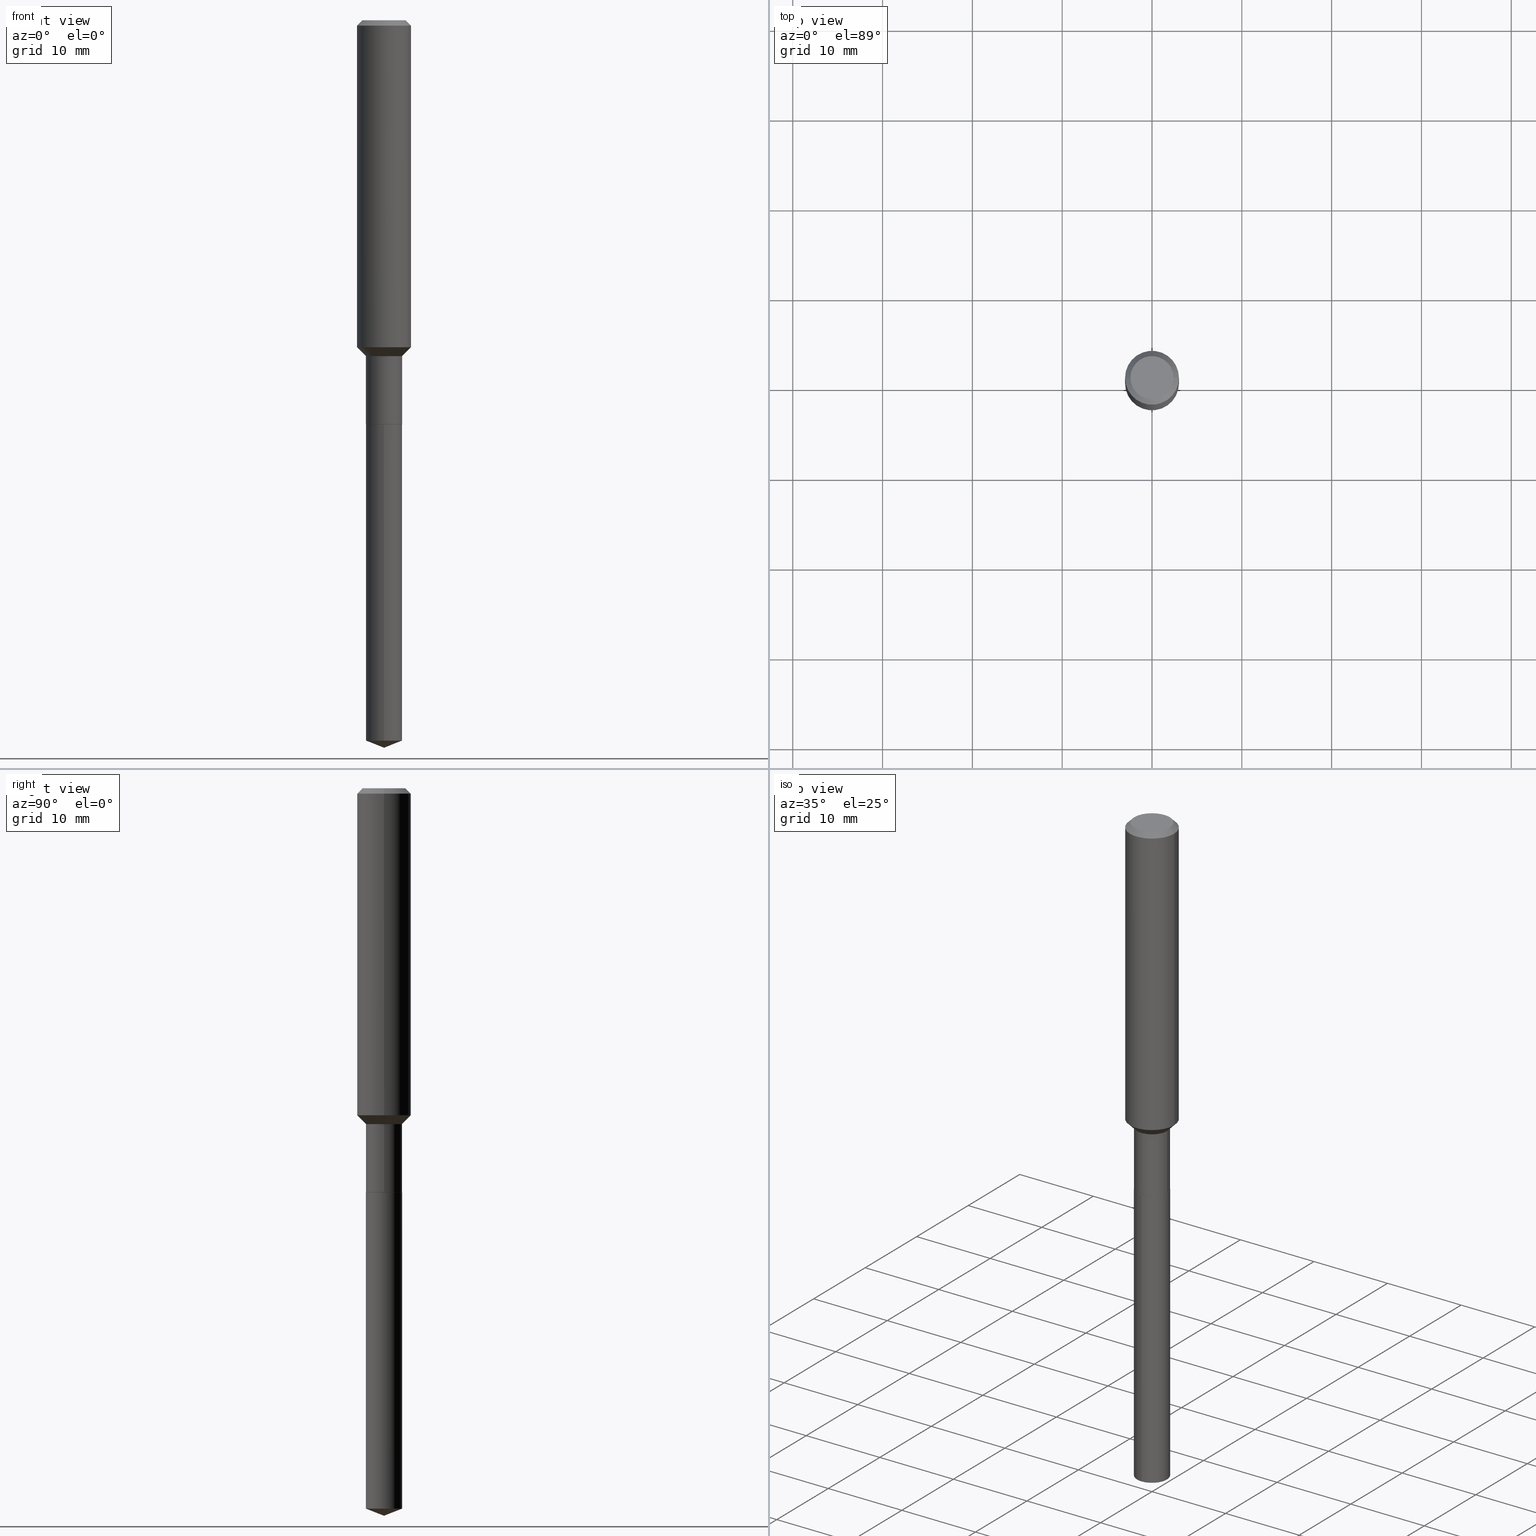
[diagram: canonical four-view strip — front | top / right | iso, engineering-drawing reading convention]
A machine part, canonical four-view strip (front | top / right | iso — engineering-drawing reading convention). The complete STEP part file that produces these views, byte-faithful:
ISO-10303-21;
HEADER;
FILE_DESCRIPTION (( 'STEP AP203' ),
    '1' );
FILE_NAME ('56476.STEP',
    '2024-04-24T18:12:11',
    ( '' ),
    ( '' ),
    'SwSTEP 2.0',
    'SolidWorks 2023',
    '' );
FILE_SCHEMA (( 'CONFIG_CONTROL_DESIGN' ));
ENDSEC;

DATA;
#1 = CARTESIAN_POINT ( 'NONE',  ( 0.07949999999999995959, -5.695304359920937279E-15, -1.472200000000000175 ) ) ;
#2 = ADVANCED_FACE ( 'NONE', ( #250 ), #63, .T. ) ;
#3 = VERTEX_POINT ( 'NONE', #438 ) ;
#4 = DIRECTION ( 'NONE',  ( -6.982962677686265922E-15, -1.000000000000000000, 3.436286784483350005E-15 ) ) ;
#5 = ADVANCED_FACE ( 'NONE', ( #482 ), #175, .F. ) ;
#6 = CC_DESIGN_PERSON_AND_ORGANIZATION_ASSIGNMENT ( #178, #139, ( #163 ) ) ;
#7 = CARTESIAN_POINT ( 'NONE',  ( 4.332637083918206987E-29, -6.185857488028401870E-15, -1.771700000000000497 ) ) ;
#8 = ORIENTED_EDGE ( 'NONE', *, *, #238, .F. ) ;
#9 = SECURITY_CLASSIFICATION_LEVEL ( 'unclassified' ) ;
#10 = DIRECTION ( 'NONE',  ( 1.000000000000000000, -6.982962677686267499E-15, 4.876176775795935793E-29 ) ) ;
#11 = ORIENTED_EDGE ( 'NONE', *, *, #386, .F. ) ;
#12 = DIRECTION ( 'NONE',  ( -2.445298499858016910E-29, 3.491725227196815227E-15, 1.000000000000000000 ) ) ;
#13 = FACE_OUTER_BOUND ( 'NONE', #380, .T. ) ;
#14 = CARTESIAN_POINT ( 'NONE',  ( 5.776197320209328408E-31, -8.246878922347560526E-17, -0.02362000000000014435 ) ) ;
#15 = APPLICATION_CONTEXT ( 'configuration controlled 3d designs of mechanical parts and assemblies' ) ;
#16 = COORDINATED_UNIVERSAL_TIME_OFFSET ( 5, 0, .BEHIND. ) ;
#17 = EDGE_LOOP ( 'NONE', ( #111, #439, #34, #314 ) ) ;
#18 = EDGE_CURVE ( 'NONE', #378, #227, #50, .T. ) ;
#19 = FACE_OUTER_BOUND ( 'NONE', #452, .T. ) ;
#20 = VERTEX_POINT ( 'NONE', #58 ) ;
#21 = ADVANCED_FACE ( 'NONE', ( #253 ), #442, .T. ) ;
#22 = MECHANICAL_CONTEXT ( 'NONE', #15, 'mechanical' ) ;
#23 = FACE_OUTER_BOUND ( 'NONE', #460, .T. ) ;
#24 = ORIENTED_EDGE ( 'NONE', *, *, #326, .T. ) ;
#25 = VECTOR ( 'NONE', #284, 39.37007874015748143 ) ;
#26 = CONICAL_SURFACE ( 'NONE', #288, 99.94676754583854006, 1.195550537616114628 ) ;
#27 = DIRECTION ( 'NONE',  ( -2.445468806185136597E-29, 3.491481338843145583E-15, 1.000000000000000000 ) ) ;
#28 = DIRECTION ( 'NONE',  ( -2.445468806185136877E-29, 3.491481338843145188E-15, 1.000000000000000000 ) ) ;
#29 = AXIS2_PLACEMENT_3D ( 'NONE', #194, #345, #156 ) ;
#30 = LINE ( 'NONE', #186, #168 ) ;
#31 = FACE_OUTER_BOUND ( 'NONE', #193, .T. ) ;
#32 = ORIENTED_EDGE ( 'NONE', *, *, #337, .F. ) ;
#33 = DATE_AND_TIME ( #376, #411 ) ;
#34 = ORIENTED_EDGE ( 'NONE', *, *, #367, .T. ) ;
#35 = ORIENTED_EDGE ( 'NONE', *, *, #182, .F. ) ;
#36 = DIRECTION ( 'NONE',  ( -6.982962677686265922E-15, -1.000000000000000000, 3.498627837350054315E-15 ) ) ;
#37 = ORIENTED_EDGE ( 'NONE', *, *, #91, .F. ) ;
#38 = CIRCLE ( 'NONE', #213, 0.07949999999999995959 ) ;
#39 = FACE_OUTER_BOUND ( 'NONE', #344, .T. ) ;
#40 = CC_DESIGN_PERSON_AND_ORGANIZATION_ASSIGNMENT ( #88, #146, ( #163 ) ) ;
#41 = DIRECTION ( 'NONE',  ( 1.000000000000000000, -6.982962677686266711E-15, 0.000000000000000000 ) ) ;
#42 = ORIENTED_EDGE ( 'NONE', *, *, #337, .T. ) ;
#43 = CYLINDRICAL_SURFACE ( 'NONE', #366, 0.07949999999999998734 ) ;
#44 = ORIENTED_EDGE ( 'NONE', *, *, #405, .T. ) ;
#45 = CARTESIAN_POINT ( 'NONE',  ( 4.332637083918206987E-29, -6.185857488028401870E-15, -1.771700000000000497 ) ) ;
#46 = DIRECTION ( 'NONE',  ( -2.445298499858016910E-29, 3.491725227196815227E-15, 1.000000000000000000 ) ) ;
#47 = AXIS2_PLACEMENT_3D ( 'NONE', #277, #46, #317 ) ;
#48 = CARTESIAN_POINT ( 'NONE',  ( -5.551455328760147649E-16, -0.07950000000000617684, -1.771700000000000053 ) ) ;
#49 = PERSON_AND_ORGANIZATION ( #246, #60 ) ;
#50 = LINE ( 'NONE', #137, #105 ) ;
#51 = LINE ( 'NONE', #348, #417 ) ;
#52 = CIRCLE ( 'NONE', #468, 0.07950000000000000122 ) ;
#53 = DIRECTION ( 'NONE',  ( 0.000000000000000000, 0.000000000000000000, 1.000000000000000000 ) ) ;
#54 = CARTESIAN_POINT ( 'NONE',  ( 4.332637083918206987E-29, -6.185857488028401870E-15, -1.771700000000000497 ) ) ;
#55 = ADVANCED_FACE ( 'NONE', ( #23 ), #211, .T. ) ;
#56 = EDGE_CURVE ( 'NONE', #310, #119, #76, .T. ) ;
#57 = APPROVAL_STATUS ( 'not_yet_approved' ) ;
#58 = CARTESIAN_POINT ( 'NONE',  ( -0.07950000000000000122, -5.097253812272650534E-15, -1.771200000000000552 ) ) ;
#59 = APPROVAL ( #275, 'UNSPECIFIED' ) ;
#60 = ORGANIZATION ( 'UNSPECIFIED', 'UNSPECIFIED', '' ) ;
#61 = COORDINATED_UNIVERSAL_TIME_OFFSET ( 5, 0, .BEHIND. ) ;
#62 = CARTESIAN_POINT ( 'NONE',  ( 4.332637083918206987E-29, -6.185857488028401870E-15, -1.771700000000000497 ) ) ;
#63 = CONICAL_SURFACE ( 'NONE', #125, 0.07900000000000000078, 0.7853981633975507526 ) ;
#64 = CARTESIAN_POINT ( 'NONE',  ( 0.000000000000000000, 0.000000000000000000, 0.000000000000000000 ) ) ;
#65 = DIRECTION ( 'NONE',  ( -0.7071067811865496822, 7.493145998870362049E-15, 0.7071067811865453523 ) ) ;
#66 = CIRCLE ( 'NONE', #29, 0.1181000000000001632 ) ;
#67 = ADVANCED_FACE ( 'NONE', ( #290 ), #435, .F. ) ;
#68 = DIRECTION ( 'NONE',  ( -2.445468806185136597E-29, 3.491481338843145583E-15, 1.000000000000000000 ) ) ;
#69 = EDGE_CURVE ( 'NONE', #378, #20, #52, .T. ) ;
#70 = CARTESIAN_POINT ( 'NONE',  ( 0.1181000000000000799, -8.246878922347486570E-16, 5.758764772215004644E-30 ) ) ;
#71 = APPROVAL_PERSON_ORGANIZATION ( #49, #145, #257 ) ;
#72 = CARTESIAN_POINT ( 'NONE',  ( 5.776197320209328408E-31, -8.246878922347560526E-17, -0.02362000000000014435 ) ) ;
#73 = ORIENTED_EDGE ( 'NONE', *, *, #370, .F. ) ;
#74 = APPROVAL_ROLE ( '' ) ;
#75 = LINE ( 'NONE', #311, #343 ) ;
#76 = CIRCLE ( 'NONE', #333, 0.1181000000000001632 ) ;
#77 = ORIENTED_EDGE ( 'NONE', *, *, #355, .F. ) ;
#78 = ORIENTED_EDGE ( 'NONE', *, *, #291, .T. ) ;
#79 = CARTESIAN_POINT ( 'NONE',  ( 0.000000000000000000, 0.000000000000000000, 0.000000000000000000 ) ) ;
#80 = DIRECTION ( 'NONE',  ( 1.000000000000000000, -6.982962677686266711E-15, 0.000000000000000000 ) ) ;
#81 = ORIENTED_EDGE ( 'NONE', *, *, #112, .T. ) ;
#82 = CARTESIAN_POINT ( 'NONE',  ( 3.600219176465758474E-29, -5.140158827044879423E-15, -1.472200000000000175 ) ) ;
#83 = ORIENTED_EDGE ( 'NONE', *, *, #56, .T. ) ;
#84 = DIRECTION ( 'NONE',  ( 0.7071067811865496822, -2.468850131082279149E-15, 0.7071067811865453523 ) ) ;
#85 = CARTESIAN_POINT ( 'NONE',  ( 5.648814749293228466E-16, 0.07949999999999381173, -1.771700000000000719 ) ) ;
#86 = CARTESIAN_POINT ( 'NONE',  ( -0.1180999999999999966, 7.422191030112725094E-16, -0.02362000000000014435 ) ) ;
#87 = VECTOR ( 'NONE', #347, 39.37007874015748143 ) ;
#88 = PERSON_AND_ORGANIZATION ( #246, #60 ) ;
#89 = ORIENTED_EDGE ( 'NONE', *, *, #256, .F. ) ;
#90 = CARTESIAN_POINT ( 'NONE',  ( 0.1180999999999999966, -8.926936027602933910E-16, -0.02362000000000014435 ) ) ;
#91 = EDGE_CURVE ( 'NONE', #270, #187, #299, .T. ) ;
#92 = CC_DESIGN_PERSON_AND_ORGANIZATION_ASSIGNMENT ( #220, #176, ( #131 ) ) ;
#93 = CARTESIAN_POINT ( 'NONE',  ( 5.776197320209328408E-31, -8.246878922347560526E-17, -0.02362000000000014435 ) ) ;
#94 = DIRECTION ( 'NONE',  ( -2.445298499858016910E-29, 3.491725227196815227E-15, 1.000000000000000000 ) ) ;
#95 = APPROVAL_STATUS ( 'not_yet_approved' ) ;
#96 = EDGE_LOOP ( 'NONE', ( #83, #450, #226, #346 ) ) ;
#97 = APPROVAL_PERSON_ORGANIZATION ( #358, #183, #174 ) ;
#98 = DIRECTION ( 'NONE',  ( 1.000000000000000000, 0.000000000000000000, 0.000000000000000000 ) ) ;
#99 = DIRECTION ( 'NONE',  ( -2.445468806185136597E-29, 3.491481338843145583E-15, 1.000000000000000000 ) ) ;
#100 = CIRCLE ( 'NONE', #353, 0.07950000000000000122 ) ;
#101 = AXIS2_PLACEMENT_3D ( 'NONE', #381, #316, #243 ) ;
#102 = EDGE_CURVE ( 'NONE', #414, #227, #455, .T. ) ;
#103 = CARTESIAN_POINT ( 'NONE',  ( 3.600219176465758474E-29, -5.140158827044879423E-15, -1.472200000000000175 ) ) ;
#104 = ADVANCED_FACE ( 'NONE', ( #397 ), #292, .T. ) ;
#105 = VECTOR ( 'NONE', #364, 39.37007874015748143 ) ;
#106 = AXIS2_PLACEMENT_3D ( 'NONE', #224, #374, #144 ) ;
#107 = CARTESIAN_POINT ( 'NONE',  ( -0.07949999999999995959, -4.575277352115599668E-15, -1.472200000000000175 ) ) ;
#108 = AXIS2_PLACEMENT_3D ( 'NONE', #124, #466, #308 ) ;
#109 = ORIENTED_EDGE ( 'NONE', *, *, #256, .T. ) ;
#110 = ORIENTED_EDGE ( 'NONE', *, *, #293, .F. ) ;
#111 = ORIENTED_EDGE ( 'NONE', *, *, #291, .F. ) ;
#112 = EDGE_CURVE ( 'NONE', #3, #375, #147, .T. ) ;
#113 = DIRECTION ( 'NONE',  ( 1.000000000000000000, -6.982962677686269866E-15, 0.000000000000000000 ) ) ;
#114 = EDGE_CURVE ( 'NONE', #119, #150, #30, .T. ) ;
#115 = AXIS2_PLACEMENT_3D ( 'NONE', #14, #361, #399 ) ;
#116 = VERTEX_POINT ( 'NONE', #318 ) ;
#117 = CARTESIAN_POINT ( 'NONE',  ( 4.332637083918206987E-29, -6.185857488028401870E-15, -1.771700000000000497 ) ) ;
#118 = FACE_OUTER_BOUND ( 'NONE', #447, .T. ) ;
#119 = VERTEX_POINT ( 'NONE', #244 ) ;
#120 = CC_DESIGN_APPROVAL ( #183, ( #131 ) ) ;
#121 = DIRECTION ( 'NONE',  ( -2.445298499858016910E-29, 3.491725227196815227E-15, 1.000000000000000000 ) ) ;
#122 = EDGE_CURVE ( 'NONE', #20, #378, #100, .T. ) ;
#123 = EDGE_LOOP ( 'NONE', ( #429, #268, #162, #35 ) ) ;
#124 = CARTESIAN_POINT ( 'NONE',  ( 6.603013411620882309E-46, -9.427353171913646324E-32, -2.700101262760083747E-17 ) ) ;
#125 = AXIS2_PLACEMENT_3D ( 'NONE', #62, #130, #321 ) ;
#126 = FACE_OUTER_BOUND ( 'NONE', #231, .T. ) ;
#127 = CARTESIAN_POINT ( 'NONE',  ( 0.07900000000000000078, -6.737511539565617508E-15, -1.771700000000000497 ) ) ;
#128 = CONICAL_SURFACE ( 'NONE', #185, 0.07949999999999995959, 0.7853981633974513876 ) ;
#129 = CARTESIAN_POINT ( 'NONE',  ( 0.000000000000000000, 0.000000000000000000, 0.000000000000000000 ) ) ;
#130 = DIRECTION ( 'NONE',  ( -2.445468806185136597E-29, 3.491481338843145583E-15, 1.000000000000000000 ) ) ;
#131 = PRODUCT_DEFINITION ( 'UNKNOWN', '', #163, #287 ) ;
#132 = CARTESIAN_POINT ( 'NONE',  ( -0.07949999999999998734, 5.648814749292795578E-16, -3.910553396752649427E-30 ) ) ;
#133 = DIRECTION ( 'NONE',  ( 1.000000000000000000, -6.982962677686265922E-15, 0.000000000000000000 ) ) ;
#134 = DATE_TIME_ROLE ( 'creation_date' ) ;
#135 = ORIENTED_EDGE ( 'NONE', *, *, #326, .F. ) ;
#136 = DIRECTION ( 'NONE',  ( 2.445468806185136597E-29, -3.491481338843145583E-15, -1.000000000000000000 ) ) ;
#137 = CARTESIAN_POINT ( 'NONE',  ( 0.07949999999999998734, -5.551455328760581522E-16, 3.876560536757768171E-30 ) ) ;
#138 = CIRCLE ( 'NONE', #108, 0.09447999999999998066 ) ;
#139 = PERSON_AND_ORGANIZATION_ROLE ( 'creator' ) ;
#140 = CIRCLE ( 'NONE', #339, 0.07950000000000000122 ) ;
#141 = ADVANCED_FACE ( 'NONE', ( #428 ), #467, .T. ) ;
#142 = CIRCLE ( 'NONE', #373, 0.07900000000000000078 ) ;
#143 = EDGE_CURVE ( 'NONE', #375, #3, #140, .T. ) ;
#144 = DIRECTION ( 'NONE',  ( -1.000000000000000000, 6.982962677686265922E-15, -4.876176775795935793E-29 ) ) ;
#145 = APPROVAL ( #95, 'UNSPECIFIED' ) ;
#146 = PERSON_AND_ORGANIZATION_ROLE ( 'design_supplier' ) ;
#147 = CIRCLE ( 'NONE', #190, 0.07950000000000000122 ) ;
#148 = DIRECTION ( 'NONE',  ( 1.000000000000000000, -6.982962677686269866E-15, 0.000000000000000000 ) ) ;
#149 = EDGE_LOOP ( 'NONE', ( #454, #202, #11, #424 ) ) ;
#150 = VERTEX_POINT ( 'NONE', #436 ) ;
#151 = CC_DESIGN_APPROVAL ( #145, ( #163 ) ) ;
#152 = ORIENTED_EDGE ( 'NONE', *, *, #198, .F. ) ;
#153 = CARTESIAN_POINT ( 'NONE',  ( 0.000000000000000000, 0.000000000000000000, 0.000000000000000000 ) ) ;
#154 = ORIENTED_EDGE ( 'NONE', *, *, #234, .T. ) ;
#155 = DATE_AND_TIME ( #228, #236 ) ;
#156 = DIRECTION ( 'NONE',  ( 1.000000000000000000, -6.982962677686270655E-15, 0.000000000000000000 ) ) ;
#157 = CARTESIAN_POINT ( 'NONE',  ( 0.1180999999999999966, -9.071566814582237199E-16, -0.02362000000000014435 ) ) ;
#158 = ORIENTED_EDGE ( 'NONE', *, *, #456, .T. ) ;
#159 = EDGE_CURVE ( 'NONE', #116, #20, #51, .T. ) ;
#160 = DIRECTION ( 'NONE',  ( -2.445468806185136597E-29, 3.491481338843145583E-15, 1.000000000000000000 ) ) ;
#161 = EDGE_CURVE ( 'NONE', #187, #150, #219, .T. ) ;
#162 = ORIENTED_EDGE ( 'NONE', *, *, #69, .F. ) ;
#163 = PRODUCT_DEFINITION_FORMATION_WITH_SPECIFIED_SOURCE ( 'ANY', '', #426, .NOT_KNOWN. ) ;
#164 = CARTESIAN_POINT ( 'NONE',  ( -0.07949999999999995959, -5.097253812272650534E-15, -1.472200000000000175 ) ) ;
#165 = DIRECTION ( 'NONE',  ( -2.445298499858016910E-29, 3.491725227196815227E-15, 1.000000000000000000 ) ) ;
#166 = CYLINDRICAL_SURFACE ( 'NONE', #423, 0.1181000000000000799 ) ;
#167 = DIRECTION ( 'NONE',  ( 1.000000000000000000, -6.982962677686271444E-15, 0.000000000000000000 ) ) ;
#168 = VECTOR ( 'NONE', #474, 39.37007874015748143 ) ;
#169 =( NAMED_UNIT ( * ) SI_UNIT ( $, .STERADIAN. ) SOLID_ANGLE_UNIT ( ) );
#170 = CARTESIAN_POINT ( 'NONE',  ( 4.332637083918206987E-29, -6.185857488028401870E-15, -1.771700000000000497 ) ) ;
#171 = LOCAL_TIME ( 14, 12, 11.00000000000000000, #61 ) ;
#172 = CALENDAR_DATE ( 2024, 24, 4 ) ;
#173 = DIRECTION ( 'NONE',  ( 1.000000000000000000, -6.982962677686271444E-15, 0.000000000000000000 ) ) ;
#174 = APPROVAL_ROLE ( '' ) ;
#175 = PLANE ( 'NONE',  #189 ) ;
#176 = PERSON_AND_ORGANIZATION_ROLE ( 'creator' ) ;
#177 = CARTESIAN_POINT ( 'NONE',  ( 3.505824080547012473E-29, -5.005387647365534614E-15, -1.433600000000000207 ) ) ;
#178 = PERSON_AND_ORGANIZATION ( #246, #60 ) ;
#179 = AXIS2_PLACEMENT_3D ( 'NONE', #103, #68, #148 ) ;
#180 = DIRECTION ( 'NONE',  ( 6.982962677686265922E-15, 1.000000000000000000, -3.491725227196814833E-15 ) ) ;
#181 = VECTOR ( 'NONE', #332, 39.37007874015748143 ) ;
#182 = EDGE_CURVE ( 'NONE', #225, #378, #197, .T. ) ;
#183 = APPROVAL ( #57, 'UNSPECIFIED' ) ;
#184 = DIMENSIONAL_EXPONENTS ( 1.000000000000000000, 0.000000000000000000, 0.000000000000000000, 0.000000000000000000, 0.000000000000000000, 0.000000000000000000, 0.000000000000000000 ) ;
#185 = AXIS2_PLACEMENT_3D ( 'NONE', #82, #431, #113 ) ;
#186 = CARTESIAN_POINT ( 'NONE',  ( -0.1181000000000000799, 8.391509709326788873E-16, -5.809262341591047988E-30 ) ) ;
#187 = VERTEX_POINT ( 'NONE', #157 ) ;
#188 = APPROVAL_DATE_TIME ( #33, #59 ) ;
#189 = AXIS2_PLACEMENT_3D ( 'NONE', #54, #393, #218 ) ;
#190 = AXIS2_PLACEMENT_3D ( 'NONE', #432, #94, #359 ) ;
#191 = ORIENTED_EDGE ( 'NONE', *, *, #367, .F. ) ;
#192 = FACE_OUTER_BOUND ( 'NONE', #446, .T. ) ;
#193 = EDGE_LOOP ( 'NONE', ( #349, #78, #357, #191 ) ) ;
#194 = CARTESIAN_POINT ( 'NONE',  ( 3.505824080547012473E-29, -5.005387647365534614E-15, -1.433600000000000207 ) ) ;
#195 = ORIENTED_EDGE ( 'NONE', *, *, #405, .F. ) ;
#196 = DIRECTION ( 'NONE',  ( -2.445298499858016910E-29, 3.491725227196815227E-15, 1.000000000000000000 ) ) ;
#197 = LINE ( 'NONE', #127, #484 ) ;
#198 = EDGE_CURVE ( 'NONE', #225, #116, #262, .T. ) ;
#199 = ORIENTED_EDGE ( 'NONE', *, *, #459, .T. ) ;
#200 = DIRECTION ( 'NONE',  ( -0.7071067811865459074, 2.468850131082240100E-15, -0.7071067811865491270 ) ) ;
#201 = ADVANCED_FACE ( 'NONE', ( #118 ), #229, .T. ) ;
#202 = ORIENTED_EDGE ( 'NONE', *, *, #480, .T. ) ;
#203 = DIRECTION ( 'NONE',  ( -2.445468806185136597E-29, 3.491481338843145583E-15, 1.000000000000000000 ) ) ;
#204 = DIRECTION ( 'NONE',  ( -6.982962677686265922E-15, -1.000000000000000000, 6.872573568966700010E-15 ) ) ;
#205 = APPROVAL_PERSON_ORGANIZATION ( #372, #59, #74 ) ;
#206 = FACE_OUTER_BOUND ( 'NONE', #17, .T. ) ;
#207 = DIRECTION ( 'NONE',  ( -6.982962677686265922E-15, -1.000000000000000000, 3.436286784483350005E-15 ) ) ;
#208 = DATE_AND_TIME ( #478, #400 ) ;
#209 = DIRECTION ( 'NONE',  ( 2.445298499858016910E-29, -3.491725227196814833E-15, -1.000000000000000000 ) ) ;
#210 = CARTESIAN_POINT ( 'NONE',  ( 7.721781966506557939E-29, -1.102533319450998627E-14, -3.157684117188612305 ) ) ;
#211 = CONICAL_SURFACE ( 'NONE', #487, 0.07900000000000000078, 0.7853981633975507526 ) ;
#212 = ORIENTED_EDGE ( 'NONE', *, *, #143, .T. ) ;
#213 = AXIS2_PLACEMENT_3D ( 'NONE', #230, #203, #350 ) ;
#214 = COORDINATED_UNIVERSAL_TIME_OFFSET ( 5, 0, .BEHIND. ) ;
#215 = ORIENTED_EDGE ( 'NONE', *, *, #335, .F. ) ;
#216 = EDGE_CURVE ( 'NONE', #375, #248, #312, .T. ) ;
#217 = CALENDAR_DATE ( 2024, 24, 4 ) ;
#218 = DIRECTION ( 'NONE',  ( 1.000000000000000000, -6.982962677686265922E-15, 4.876176775795935793E-29 ) ) ;
#219 = CIRCLE ( 'NONE', #430, 0.1180999999999999966 ) ;
#220 = PERSON_AND_ORGANIZATION ( #246, #60 ) ;
#221 = ORIENTED_EDGE ( 'NONE', *, *, #114, .F. ) ;
#222 = VECTOR ( 'NONE', #84, 39.37007874015748143 ) ;
#223 = CONICAL_SURFACE ( 'NONE', #179, 0.07949999999999995959, 0.7853981633974513876 ) ;
#224 = CARTESIAN_POINT ( 'NONE',  ( 3.301506705810441154E-46, -4.713676585956823162E-32, -1.350050631380041873E-17 ) ) ;
#225 = VERTEX_POINT ( 'NONE', #470 ) ;
#226 = ORIENTED_EDGE ( 'NONE', *, *, #161, .F. ) ;
#227 = VERTEX_POINT ( 'NONE', #419 ) ;
#228 = CALENDAR_DATE ( 2024, 24, 4 ) ;
#229 = CONICAL_SURFACE ( 'NONE', #47, 99.94676754583854006, 1.195550537616114628 ) ;
#230 = CARTESIAN_POINT ( 'NONE',  ( 3.600219176465758474E-29, -5.140158827044879423E-15, -1.472200000000000175 ) ) ;
#231 = EDGE_LOOP ( 'NONE', ( #110, #199, #479 ) ) ;
#232 = PERSON_AND_ORGANIZATION_ROLE ( 'classification_officer' ) ;
#233 = CARTESIAN_POINT ( 'NONE',  ( 7.798056916047217309E-29, -1.113511174953064520E-14, -3.189000000000000501 ) ) ;
#234 = EDGE_CURVE ( 'NONE', #310, #187, #368, .T. ) ;
#235 = CARTESIAN_POINT ( 'NONE',  ( 5.776197320209328408E-31, -8.246878922347560526E-17, -0.02362000000000014435 ) ) ;
#236 = LOCAL_TIME ( 14, 12, 11.00000000000000000, #266 ) ;
#237 = ORIENTED_EDGE ( 'NONE', *, *, #480, .F. ) ;
#238 = EDGE_CURVE ( 'NONE', #150, #187, #443, .T. ) ;
#239 = FACE_OUTER_BOUND ( 'NONE', #279, .T. ) ;
#240 = ORIENTED_EDGE ( 'NONE', *, *, #459, .F. ) ;
#241 = DIRECTION ( 'NONE',  ( -2.445298499858016910E-29, 3.491725227196815227E-15, 1.000000000000000000 ) ) ;
#242 = DIRECTION ( 'NONE',  ( 0.7071067811866199593, -2.468850131083015945E-15, 0.7071067811864750752 ) ) ;
#243 = DIRECTION ( 'NONE',  ( 1.000000000000000000, -6.982962677686267499E-15, 4.876176775795935793E-29 ) ) ;
#244 = CARTESIAN_POINT ( 'NONE',  ( -0.1181000000000001632, -4.166236676432854051E-15, -1.433600000000000207 ) ) ;
#245 = ORIENTED_EDGE ( 'NONE', *, *, #182, .T. ) ;
#246 = PERSON ( 'UNSPECIFIED', 'UNSPECIFIED', 'UNSPECIFIED', ('UNSPECIFIED'), ('UNSPECIFIED'), ('UNSPECIFIED') ) ;
#247 = DIRECTION ( 'NONE',  ( -2.445468806185136877E-29, 3.491481338843145188E-15, 1.000000000000000000 ) ) ;
#248 = VERTEX_POINT ( 'NONE', #445 ) ;
#249 = LENGTH_MEASURE_WITH_UNIT ( LENGTH_MEASURE( 0.02539999999999999897 ), #395 );
#250 = FACE_OUTER_BOUND ( 'NONE', #123, .T. ) ;
#251 = AXIS2_PLACEMENT_3D ( 'NONE', #441, #99, #261 ) ;
#252 = DIRECTION ( 'NONE',  ( 6.611014441532053178E-15, 0.9304175679820252398, 0.3665012267242950261 ) ) ;
#253 = FACE_OUTER_BOUND ( 'NONE', #329, .T. ) ;
#254 = ADVANCED_FACE ( 'NONE', ( #192 ), #334, .F. ) ;
#255 = CIRCLE ( 'NONE', #263, 0.07950000000000000122 ) ;
#256 = EDGE_CURVE ( 'NONE', #270, #354, #278, .T. ) ;
#257 = APPROVAL_ROLE ( '' ) ;
#258 = ORIENTED_EDGE ( 'NONE', *, *, #102, .F. ) ;
#259 = CC_DESIGN_PERSON_AND_ORGANIZATION_ASSIGNMENT ( #440, #356, ( #426 ) ) ;
#260 = LINE ( 'NONE', #328, #297 ) ;
#261 = DIRECTION ( 'NONE',  ( 1.000000000000000000, -6.982962677686269866E-15, 0.000000000000000000 ) ) ;
#262 = CIRCLE ( 'NONE', #320, 0.07900000000000000078 ) ;
#263 = AXIS2_PLACEMENT_3D ( 'NONE', #421, #241, #4 ) ;
#264 = MANIFOLD_SOLID_BREP ( 'Body-Move/Copy2[1]', #477 ) ;
#265 = SHAPE_DEFINITION_REPRESENTATION ( #465, #352 ) ;
#266 = COORDINATED_UNIVERSAL_TIME_OFFSET ( 5, 0, .BEHIND. ) ;
#267 = VECTOR ( 'NONE', #200, 39.37007874015748143 ) ;
#268 = ORIENTED_EDGE ( 'NONE', *, *, #159, .T. ) ;
#269 = COORDINATED_UNIVERSAL_TIME_OFFSET ( 5, 0, .BEHIND. ) ;
#270 = VERTEX_POINT ( 'NONE', #451 ) ;
#271 = EDGE_LOOP ( 'NONE', ( #152, #32 ) ) ;
#272 = DIRECTION ( 'NONE',  ( 1.000000000000000000, -6.982962677686271444E-15, 0.000000000000000000 ) ) ;
#273 = ADVANCED_FACE ( 'NONE', ( #31 ), #223, .T. ) ;
#274 = ORIENTED_EDGE ( 'NONE', *, *, #293, .T. ) ;
#275 = APPROVAL_STATUS ( 'not_yet_approved' ) ;
#276 = LINE ( 'NONE', #48, #87 ) ;
#277 = CARTESIAN_POINT ( 'NONE',  ( -8.847323583483212594E-28, 1.263348174811984250E-13, 36.18107874015748138 ) ) ;
#278 = CIRCLE ( 'NONE', #448, 0.09447999999999998066 ) ;
#279 = EDGE_LOOP ( 'NONE', ( #387, #212, #44, #73 ) ) ;
#280 = DIRECTION ( 'NONE',  ( -6.497071151882108003E-15, -0.9304175679820229083, 0.3665012267243016875 ) ) ;
#281 = ORIENTED_EDGE ( 'NONE', *, *, #355, .T. ) ;
#282 = LINE ( 'NONE', #86, #267 ) ;
#283 = AXIS2_PLACEMENT_3D ( 'NONE', #7, #392, #207 ) ;
#284 = DIRECTION ( 'NONE',  ( -2.445298499858016629E-29, 3.491725227196814833E-15, 1.000000000000000000 ) ) ;
#285 = CARTESIAN_POINT ( 'NONE',  ( -8.847323583483212594E-28, 1.263348174811984250E-13, 36.18107874015748138 ) ) ;
#286 = DIRECTION ( 'NONE',  ( 1.000000000000000000, -6.982962677686266711E-15, 4.876176775795936353E-29 ) ) ;
#287 = DESIGN_CONTEXT ( 'detailed design', #315, 'design' ) ;
#288 = AXIS2_PLACEMENT_3D ( 'NONE', #285, #196, #36 ) ;
#289 = CARTESIAN_POINT ( 'NONE',  ( -5.551455328760147649E-16, -0.07950000000000617684, -1.771700000000000053 ) ) ;
#290 = FACE_OUTER_BOUND ( 'NONE', #488, .T. ) ;
#291 = EDGE_CURVE ( 'NONE', #414, #119, #302, .T. ) ;
#292 = CYLINDRICAL_SURFACE ( 'NONE', #362, 0.1181000000000000799 ) ;
#293 = EDGE_CURVE ( 'NONE', #303, #3, #75, .T. ) ;
#294 = CC_DESIGN_DATE_AND_TIME_ASSIGNMENT ( #155, #489, ( #444 ) ) ;
#295 = LINE ( 'NONE', #132, #313 ) ;
#296 = DIRECTION ( 'NONE',  ( -2.445468806185136597E-29, 3.491481338843145583E-15, 1.000000000000000000 ) ) ;
#297 = VECTOR ( 'NONE', #252, 39.37007874015748854 ) ;
#298 = APPROVAL_DATE_TIME ( #481, #145 ) ;
#299 = LINE ( 'NONE', #90, #181 ) ;
#300 = AXIS2_PLACEMENT_3D ( 'NONE', #129, #53, #98 ) ;
#301 = ADVANCED_FACE ( 'NONE', ( #239 ), #453, .T. ) ;
#302 = LINE ( 'NONE', #107, #323 ) ;
#303 = VERTEX_POINT ( 'NONE', #233 ) ;
#304 = ORIENTED_EDGE ( 'NONE', *, *, #122, .T. ) ;
#305 = DIRECTION ( 'NONE',  ( -6.982962677686265922E-15, -1.000000000000000000, 3.436286784483350005E-15 ) ) ;
#306 = ORIENTED_EDGE ( 'NONE', *, *, #335, .T. ) ;
#307 = CLOSED_SHELL ( 'NONE', ( #2, #21, #104, #273, #422, #406, #322, #425, #476, #254, #5, #55 ) ) ;
#308 = DIRECTION ( 'NONE',  ( 1.000000000000000000, -6.982962677686267499E-15, 4.875432709231658792E-29 ) ) ;
#309 = CARTESIAN_POINT ( 'NONE',  ( 4.332637083918206987E-29, -6.185857488028401870E-15, -1.771700000000000497 ) ) ;
#310 = VERTEX_POINT ( 'NONE', #461 ) ;
#311 = CARTESIAN_POINT ( 'NONE',  ( 7.798056916047217309E-29, -1.113511174953064363E-14, -3.189000000000000501 ) ) ;
#312 = LINE ( 'NONE', #85, #25 ) ;
#313 = VECTOR ( 'NONE', #247, 39.37007874015748143 ) ;
#314 = ORIENTED_EDGE ( 'NONE', *, *, #456, .F. ) ;
#315 = APPLICATION_CONTEXT ( 'configuration controlled 3d designs of mechanical parts and assemblies' ) ;
#316 = DIRECTION ( 'NONE',  ( -2.445468806185136597E-29, 3.491481338843145583E-15, 1.000000000000000000 ) ) ;
#317 = DIRECTION ( 'NONE',  ( -6.982962677686265922E-15, -1.000000000000000000, 3.498627837350054315E-15 ) ) ;
#318 = CARTESIAN_POINT ( 'NONE',  ( -0.07900000000000000078, -5.621879499603811813E-15, -1.771700000000000497 ) ) ;
#319 = FACE_OUTER_BOUND ( 'NONE', #149, .T. ) ;
#320 = AXIS2_PLACEMENT_3D ( 'NONE', #309, #458, #167 ) ;
#321 = DIRECTION ( 'NONE',  ( 1.000000000000000000, -6.982962677686271444E-15, 0.000000000000000000 ) ) ;
#322 = ADVANCED_FACE ( 'NONE', ( #206 ), #128, .T. ) ;
#323 = VECTOR ( 'NONE', #65, 39.37007874015748143 ) ;
#324 = APPROVAL_DATE_TIME ( #402, #183 ) ;
#325 = CARTESIAN_POINT ( 'NONE',  ( 4.331414349515115307E-29, -6.184111747358981944E-15, -1.771200000000000552 ) ) ;
#326 = EDGE_CURVE ( 'NONE', #354, #150, #282, .T. ) ;
#327 = PRODUCT_RELATED_PRODUCT_CATEGORY ( 'detail', '', ( #426 ) ) ;
#328 = CARTESIAN_POINT ( 'NONE',  ( 7.798665671148766314E-29, -1.113424755553825269E-14, -3.189000000000000501 ) ) ;
#329 = EDGE_LOOP ( 'NONE', ( #89, #415, #341, #135 ) ) ;
#330 = DIRECTION ( 'NONE',  ( -2.445468806185136597E-29, 3.491481338843145583E-15, 1.000000000000000000 ) ) ;
#331 =( GEOMETRIC_REPRESENTATION_CONTEXT ( 3 ) GLOBAL_UNCERTAINTY_ASSIGNED_CONTEXT ( ( #471 ) ) GLOBAL_UNIT_ASSIGNED_CONTEXT ( ( #360, #363, #169 ) ) REPRESENTATION_CONTEXT ( 'NONE', 'WORKASPACE' ) );
#332 = DIRECTION ( 'NONE',  ( 0.7071067811865459074, -7.319954787623249734E-15, -0.7071067811865491270 ) ) ;
#333 = AXIS2_PLACEMENT_3D ( 'NONE', #177, #403, #472 ) ;
#334 = PLANE ( 'NONE',  #106 ) ;
#335 = EDGE_CURVE ( 'NONE', #354, #270, #138, .T. ) ;
#336 = LOCAL_TIME ( 14, 12, 11.00000000000000000, #16 ) ;
#337 = EDGE_CURVE ( 'NONE', #116, #225, #142, .T. ) ;
#338 = ORIENTED_EDGE ( 'NONE', *, *, #370, .T. ) ;
#339 = AXIS2_PLACEMENT_3D ( 'NONE', #210, #165, #204 ) ;
#340 = DIRECTION ( 'NONE',  ( -2.445468806185136597E-29, 3.491481338843145583E-15, 1.000000000000000000 ) ) ;
#341 = ORIENTED_EDGE ( 'NONE', *, *, #161, .T. ) ;
#342 = DIRECTION ( 'NONE',  ( 1.000000000000000000, -6.982962677686266711E-15, 4.876176775795936353E-29 ) ) ;
#343 = VECTOR ( 'NONE', #280, 39.37007874015747433 ) ;
#344 = EDGE_LOOP ( 'NONE', ( #221, #158, #154, #8 ) ) ;
#345 = DIRECTION ( 'NONE',  ( -2.445468806185136597E-29, 3.491481338843145583E-15, 1.000000000000000000 ) ) ;
#346 = ORIENTED_EDGE ( 'NONE', *, *, #234, .F. ) ;
#347 = DIRECTION ( 'NONE',  ( -2.445298499858016629E-29, 3.491725227196814833E-15, 1.000000000000000000 ) ) ;
#348 = CARTESIAN_POINT ( 'NONE',  ( -0.07900000000000000078, -5.624528726777922225E-15, -1.771700000000000497 ) ) ;
#349 = ORIENTED_EDGE ( 'NONE', *, *, #386, .T. ) ;
#350 = DIRECTION ( 'NONE',  ( 1.000000000000000000, -6.982962677686269866E-15, 0.000000000000000000 ) ) ;
#351 = DIRECTION ( 'NONE',  ( -2.445468806185136597E-29, 3.491481338843145583E-15, 1.000000000000000000 ) ) ;
#352 = ADVANCED_BREP_SHAPE_REPRESENTATION ( '56476', ( #264, #409, #300 ), #331 ) ;
#353 = AXIS2_PLACEMENT_3D ( 'NONE', #389, #394, #385 ) ;
#354 = VERTEX_POINT ( 'NONE', #418 ) ;
#355 = EDGE_CURVE ( 'NONE', #464, #248, #412, .T. ) ;
#356 = PERSON_AND_ORGANIZATION_ROLE ( 'design_owner' ) ;
#357 = ORIENTED_EDGE ( 'NONE', *, *, #56, .F. ) ;
#358 = PERSON_AND_ORGANIZATION ( #246, #60 ) ;
#359 = DIRECTION ( 'NONE',  ( -6.982962677686265922E-15, -1.000000000000000000, 6.872573568966700010E-15 ) ) ;
#360 =( CONVERSION_BASED_UNIT ( 'INCH', #249 ) LENGTH_UNIT ( ) NAMED_UNIT ( #184 ) );
#361 = DIRECTION ( 'NONE',  ( 2.445468806185136597E-29, -3.491481338843145583E-15, -1.000000000000000000 ) ) ;
#362 = AXIS2_PLACEMENT_3D ( 'NONE', #64, #475, #286 ) ;
#363 =( NAMED_UNIT ( * ) PLANE_ANGLE_UNIT ( ) SI_UNIT ( $, .RADIAN. ) );
#364 = DIRECTION ( 'NONE',  ( -2.445468806185136877E-29, 3.491481338843145188E-15, 1.000000000000000000 ) ) ;
#365 = VECTOR ( 'NONE', #28, 39.37007874015748143 ) ;
#366 = AXIS2_PLACEMENT_3D ( 'NONE', #153, #160, #10 ) ;
#367 = EDGE_CURVE ( 'NONE', #227, #310, #427, .T. ) ;
#368 = LINE ( 'NONE', #70, #365 ) ;
#369 = AXIS2_PLACEMENT_3D ( 'NONE', #72, #27, #80 ) ;
#370 = EDGE_CURVE ( 'NONE', #248, #464, #255, .T. ) ;
#371 = CC_DESIGN_DATE_AND_TIME_ASSIGNMENT ( #208, #134, ( #131 ) ) ;
#372 = PERSON_AND_ORGANIZATION ( #246, #60 ) ;
#373 = AXIS2_PLACEMENT_3D ( 'NONE', #45, #351, #272 ) ;
#374 = DIRECTION ( 'NONE',  ( 2.438088387897960049E-29, -3.491481338843145188E-15, -1.000000000000000000 ) ) ;
#375 = VERTEX_POINT ( 'NONE', #390 ) ;
#376 = CALENDAR_DATE ( 2024, 24, 4 ) ;
#377 = EDGE_LOOP ( 'NONE', ( #81, #413, #77, #195 ) ) ;
#378 = VERTEX_POINT ( 'NONE', #388 ) ;
#379 = CARTESIAN_POINT ( 'NONE',  ( 4.332637083918206987E-29, -6.185857488028401870E-15, -1.771700000000000497 ) ) ;
#380 = EDGE_LOOP ( 'NONE', ( #237, #304, #416, #258 ) ) ;
#381 = CARTESIAN_POINT ( 'NONE',  ( 0.000000000000000000, 0.000000000000000000, 0.000000000000000000 ) ) ;
#382 = DIRECTION ( 'NONE',  ( -2.445468806185136597E-29, 3.491481338843145583E-15, 1.000000000000000000 ) ) ;
#383 = ORIENTED_EDGE ( 'NONE', *, *, #238, .T. ) ;
#384 = DIRECTION ( 'NONE',  ( -6.982962677686265922E-15, -1.000000000000000000, 3.436286784483350005E-15 ) ) ;
#385 = DIRECTION ( 'NONE',  ( 1.000000000000000000, -6.982962677686265922E-15, 0.000000000000000000 ) ) ;
#386 = EDGE_CURVE ( 'NONE', #227, #414, #38, .T. ) ;
#387 = ORIENTED_EDGE ( 'NONE', *, *, #216, .F. ) ;
#388 = CARTESIAN_POINT ( 'NONE',  ( 0.07950000000000000122, -6.739257280235039801E-15, -1.771200000000000552 ) ) ;
#389 = CARTESIAN_POINT ( 'NONE',  ( 4.331414349515115307E-29, -6.184111747358981944E-15, -1.771200000000000552 ) ) ;
#390 = CARTESIAN_POINT ( 'NONE',  ( 5.648814749293564718E-16, 0.07949999999998895450, -3.157684117188612749 ) ) ;
#391 = CC_DESIGN_APPROVAL ( #59, ( #444 ) ) ;
#392 = DIRECTION ( 'NONE',  ( -2.445298499858016910E-29, 3.491725227196815227E-15, 1.000000000000000000 ) ) ;
#393 = DIRECTION ( 'NONE',  ( -2.438088387897960049E-29, 3.491481338843145188E-15, 1.000000000000000000 ) ) ;
#394 = DIRECTION ( 'NONE',  ( -2.445468806185136597E-29, 3.491481338843145583E-15, 1.000000000000000000 ) ) ;
#395 =( LENGTH_UNIT ( ) NAMED_UNIT ( * ) SI_UNIT ( $, .METRE. ) );
#396 = AXIS2_PLACEMENT_3D ( 'NONE', #483, #209, #180 ) ;
#397 = FACE_OUTER_BOUND ( 'NONE', #96, .T. ) ;
#398 = APPLICATION_PROTOCOL_DEFINITION ( 'international standard', 'config_control_design', 1994, #315 ) ;
#399 = DIRECTION ( 'NONE',  ( -1.000000000000000000, 6.982962677686266711E-15, 0.000000000000000000 ) ) ;
#400 = LOCAL_TIME ( 14, 12, 11.00000000000000000, #214 ) ;
#401 = ORIENTED_EDGE ( 'NONE', *, *, #143, .F. ) ;
#402 = DATE_AND_TIME ( #172, #336 ) ;
#403 = DIRECTION ( 'NONE',  ( -2.445468806185136597E-29, 3.491481338843145583E-15, 1.000000000000000000 ) ) ;
#404 = CONICAL_SURFACE ( 'NONE', #486, 0.1180999999999999966, 0.7853981633974460586 ) ;
#405 = EDGE_CURVE ( 'NONE', #3, #464, #276, .T. ) ;
#406 = ADVANCED_FACE ( 'NONE', ( #13 ), #43, .T. ) ;
#407 = CC_DESIGN_PERSON_AND_ORGANIZATION_ASSIGNMENT ( #410, #232, ( #444 ) ) ;
#408 = DIRECTION ( 'NONE',  ( 1.000000000000000000, -6.982962677686267499E-15, 4.875432709231658792E-29 ) ) ;
#409 = MANIFOLD_SOLID_BREP ( 'Body-Move/Copy2[2]', #307 ) ;
#410 = PERSON_AND_ORGANIZATION ( #246, #60 ) ;
#411 = LOCAL_TIME ( 14, 12, 11.00000000000000000, #269 ) ;
#412 = CIRCLE ( 'NONE', #473, 0.07950000000000000122 ) ;
#413 = ORIENTED_EDGE ( 'NONE', *, *, #216, .T. ) ;
#414 = VERTEX_POINT ( 'NONE', #164 ) ;
#415 = ORIENTED_EDGE ( 'NONE', *, *, #91, .T. ) ;
#416 = ORIENTED_EDGE ( 'NONE', *, *, #18, .T. ) ;
#417 = VECTOR ( 'NONE', #463, 39.37007874015748143 ) ;
#418 = CARTESIAN_POINT ( 'NONE',  ( -0.09447999999999998066, 7.009847083995354710E-16, -2.700101262760559836E-17 ) ) ;
#419 = CARTESIAN_POINT ( 'NONE',  ( 0.07949999999999995959, -5.695304359920937279E-15, -1.472200000000000175 ) ) ;
#420 = ORIENTED_EDGE ( 'NONE', *, *, #122, .F. ) ;
#421 = CARTESIAN_POINT ( 'NONE',  ( 4.332637083918206987E-29, -6.185857488028401870E-15, -1.771700000000000497 ) ) ;
#422 = ADVANCED_FACE ( 'NONE', ( #319 ), #457, .T. ) ;
#423 = AXIS2_PLACEMENT_3D ( 'NONE', #79, #469, #342 ) ;
#424 = ORIENTED_EDGE ( 'NONE', *, *, #18, .F. ) ;
#425 = ADVANCED_FACE ( 'NONE', ( #39 ), #166, .T. ) ;
#426 = PRODUCT ( '56476', '56476', '', ( #22 ) ) ;
#427 = LINE ( 'NONE', #1, #222 ) ;
#428 = FACE_OUTER_BOUND ( 'NONE', #377, .T. ) ;
#429 = ORIENTED_EDGE ( 'NONE', *, *, #198, .T. ) ;
#430 = AXIS2_PLACEMENT_3D ( 'NONE', #235, #382, #41 ) ;
#431 = DIRECTION ( 'NONE',  ( -2.445468806185136597E-29, 3.491481338843145583E-15, 1.000000000000000000 ) ) ;
#432 = CARTESIAN_POINT ( 'NONE',  ( 7.721781966506557939E-29, -1.102533319450998627E-14, -3.157684117188612305 ) ) ;
#433 = CC_DESIGN_SECURITY_CLASSIFICATION ( #444, ( #163 ) ) ;
#434 = DIRECTION ( 'NONE',  ( -1.000000000000000000, 6.982962677686266711E-15, 0.000000000000000000 ) ) ;
#435 = PLANE ( 'NONE',  #396 ) ;
#436 = CARTESIAN_POINT ( 'NONE',  ( -0.1180999999999999966, -1.704777247361825655E-15, -0.02362000000000014435 ) ) ;
#437 = APPLICATION_PROTOCOL_DEFINITION ( 'international standard', 'config_control_design', 1994, #15 ) ;
#438 = CARTESIAN_POINT ( 'NONE',  ( -5.551455328759807452E-16, -0.07950000000001097855, -3.157684117188611861 ) ) ;
#439 = ORIENTED_EDGE ( 'NONE', *, *, #102, .T. ) ;
#440 = PERSON_AND_ORGANIZATION ( #246, #60 ) ;
#441 = CARTESIAN_POINT ( 'NONE',  ( 3.600219176465758474E-29, -5.140158827044879423E-15, -1.472200000000000175 ) ) ;
#442 = CONICAL_SURFACE ( 'NONE', #115, 0.1180999999999999966, 0.7853981633974460586 ) ;
#443 = CIRCLE ( 'NONE', #369, 0.1180999999999999966 ) ;
#444 = SECURITY_CLASSIFICATION ( '', '', #9 ) ;
#445 = CARTESIAN_POINT ( 'NONE',  ( 5.648814749293570634E-16, 0.07949999999999381173, -1.771700000000000719 ) ) ;
#446 = EDGE_LOOP ( 'NONE', ( #306, #109 ) ) ;
#447 = EDGE_LOOP ( 'NONE', ( #240, #274, #401 ) ) ;
#448 = AXIS2_PLACEMENT_3D ( 'NONE', #485, #340, #408 ) ;
#449 = ADVANCED_FACE ( 'NONE', ( #126 ), #26, .T. ) ;
#450 = ORIENTED_EDGE ( 'NONE', *, *, #114, .T. ) ;
#451 = CARTESIAN_POINT ( 'NONE',  ( 0.09447999999999998066, -7.704367267948738690E-16, -2.700101262759583929E-17 ) ) ;
#452 = EDGE_LOOP ( 'NONE', ( #37, #215, #24, #383 ) ) ;
#453 = CYLINDRICAL_SURFACE ( 'NONE', #462, 0.07950000000000000122 ) ;
#454 = ORIENTED_EDGE ( 'NONE', *, *, #69, .T. ) ;
#455 = CIRCLE ( 'NONE', #251, 0.07949999999999995959 ) ;
#456 = EDGE_CURVE ( 'NONE', #119, #310, #66, .T. ) ;
#457 = CYLINDRICAL_SURFACE ( 'NONE', #101, 0.07949999999999998734 ) ;
#458 = DIRECTION ( 'NONE',  ( -2.445468806185136597E-29, 3.491481338843145583E-15, 1.000000000000000000 ) ) ;
#459 = EDGE_CURVE ( 'NONE', #303, #375, #260, .T. ) ;
#460 = EDGE_LOOP ( 'NONE', ( #490, #42, #245, #420 ) ) ;
#461 = CARTESIAN_POINT ( 'NONE',  ( 0.1181000000000001632, -5.830075539600283666E-15, -1.433600000000000207 ) ) ;
#462 = AXIS2_PLACEMENT_3D ( 'NONE', #379, #12, #305 ) ;
#463 = DIRECTION ( 'NONE',  ( -0.7071067811866199593, 7.493145998870616062E-15, 0.7071067811864750752 ) ) ;
#464 = VERTEX_POINT ( 'NONE', #289 ) ;
#465 = PRODUCT_DEFINITION_SHAPE ( 'NONE', 'NONE',  #131 ) ;
#466 = DIRECTION ( 'NONE',  ( -2.445468806185136597E-29, 3.491481338843145583E-15, 1.000000000000000000 ) ) ;
#467 = CYLINDRICAL_SURFACE ( 'NONE', #283, 0.07950000000000000122 ) ;
#468 = AXIS2_PLACEMENT_3D ( 'NONE', #325, #330, #133 ) ;
#469 = DIRECTION ( 'NONE',  ( -2.445468806185136597E-29, 3.491481338843145583E-15, 1.000000000000000000 ) ) ;
#470 = CARTESIAN_POINT ( 'NONE',  ( 0.07900000000000000078, -6.737511539565617508E-15, -1.771700000000000497 ) ) ;
#471 = UNCERTAINTY_MEASURE_WITH_UNIT (LENGTH_MEASURE( 1.000000000000000082E-05 ), #360, 'distance_accuracy_value', 'NONE');
#472 = DIRECTION ( 'NONE',  ( 1.000000000000000000, -6.982962677686270655E-15, 0.000000000000000000 ) ) ;
#473 = AXIS2_PLACEMENT_3D ( 'NONE', #117, #121, #384 ) ;
#474 = DIRECTION ( 'NONE',  ( -2.445468806185136877E-29, 3.491481338843145188E-15, 1.000000000000000000 ) ) ;
#475 = DIRECTION ( 'NONE',  ( -2.445468806185136597E-29, 3.491481338843145583E-15, 1.000000000000000000 ) ) ;
#476 = ADVANCED_FACE ( 'NONE', ( #19 ), #404, .T. ) ;
#477 = CLOSED_SHELL ( 'NONE', ( #141, #449, #201, #301, #67 ) ) ;
#478 = CALENDAR_DATE ( 2024, 24, 4 ) ;
#479 = ORIENTED_EDGE ( 'NONE', *, *, #112, .F. ) ;
#480 = EDGE_CURVE ( 'NONE', #20, #414, #295, .T. ) ;
#481 = DATE_AND_TIME ( #217, #171 ) ;
#482 = FACE_OUTER_BOUND ( 'NONE', #271, .T. ) ;
#483 = CARTESIAN_POINT ( 'NONE',  ( 4.332637083918206987E-29, -6.185857488028401870E-15, -1.771700000000000497 ) ) ;
#484 = VECTOR ( 'NONE', #242, 39.37007874015748143 ) ;
#485 = CARTESIAN_POINT ( 'NONE',  ( 6.603013411620882309E-46, -9.427353171913646324E-32, -2.700101262760083747E-17 ) ) ;
#486 = AXIS2_PLACEMENT_3D ( 'NONE', #93, #136, #434 ) ;
#487 = AXIS2_PLACEMENT_3D ( 'NONE', #170, #296, #173 ) ;
#488 = EDGE_LOOP ( 'NONE', ( #281, #338 ) ) ;
#489 = DATE_TIME_ROLE ( 'classification_date' ) ;
#490 = ORIENTED_EDGE ( 'NONE', *, *, #159, .F. ) ;
ENDSEC;
END-ISO-10303-21;
